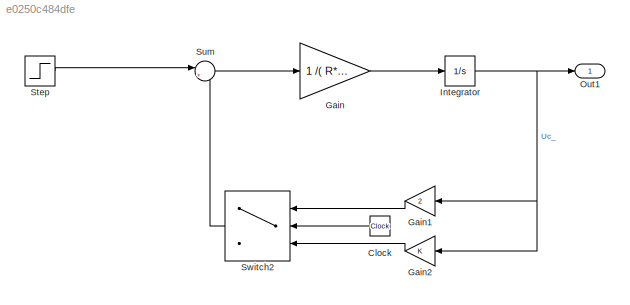
MODEL slx_e0250c484dfe
KIND model
CONFIG AbsTol = auto
CONFIG EnableMultiTasking = off
CONFIG FixedStep = auto
CONFIG MaxStep = 0.001
CONFIG MinStep = auto
CONFIG RelTol = 1e-3
CONFIG SampleTimeConstraint = Unconstrained
CONFIG SolverName = ode45
CONFIG StartTime = 0.0
CONFIG StopTime = 0.3
WORKSPACE source: MATLAB code (in-file)
WORKSPACE R = 200
WORKSPACE C = 10*10^(-6)  (= 1e-05)
BLOCK [Clock] Clock
  NameLocation = top
BLOCK [Gain] Gain
  Gain = 1 /( R*C)
BLOCK [Gain] Gain1
  Gain = 2
BLOCK [Gain] Gain2
  NameLocation = top
BLOCK [Integrator] Integrator
BLOCK [Outport] Out1
BLOCK [Step] Step
  After = 12
  SampleTime = 0
  Time = 0
BLOCK [Sum] Sum
  Inputs = |+-
BLOCK [Switch] Switch2
  Criteria = u2 > Threshold
  InputSameDT = off
  NameLocation = top
  SaturateOnIntegerOverflow = off
  Threshold = 0.2
LINE Clock:1 -> Switch2:2
LINE Gain1:1 -> Switch2:1
LINE Gain2:1 -> Switch2:3
LINE Gain:1 -> Integrator:1
NET Integrator:1 -> Gain1:1, Gain2:1, Out1:1
LINE Step:1 -> Sum:1
LINE Sum:1 -> Gain:1
LINE Switch2:1 -> Sum:2
note: NET lines group one-source signal fan-out (src -> all destinations, sorted); 1:1 wires keep LINE
